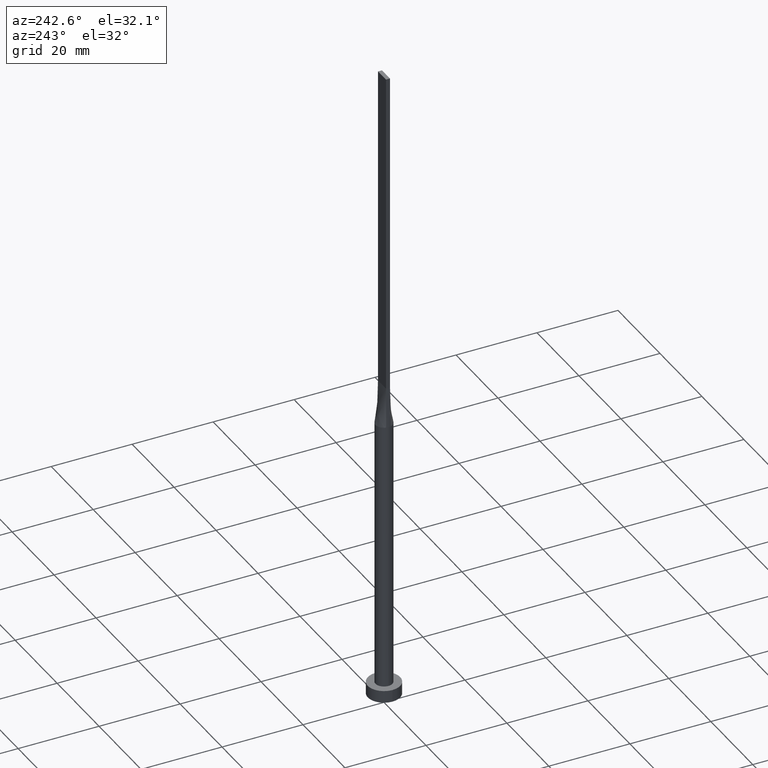
[diagram: clean part render]
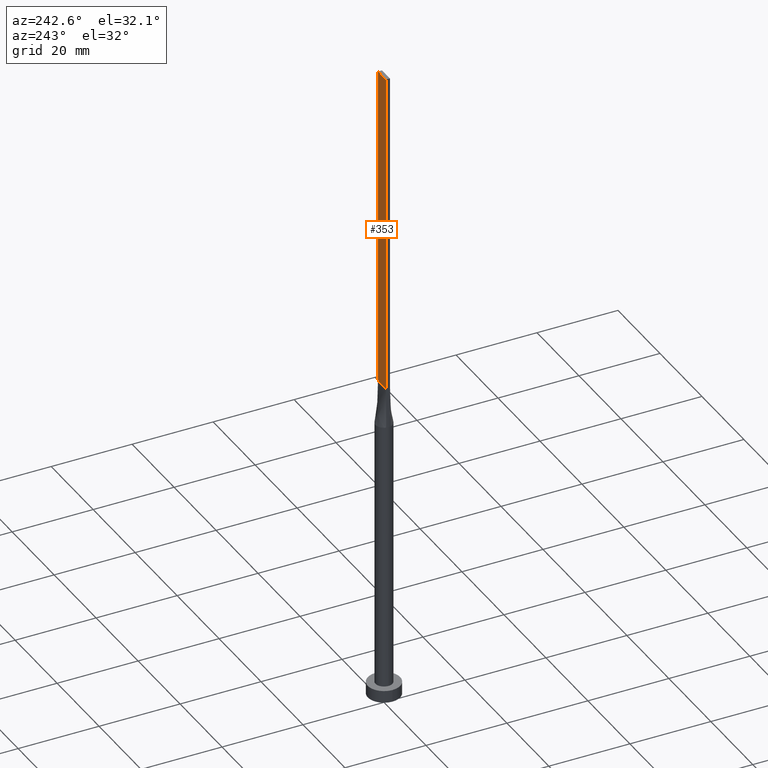
[diagram: same view with one face highlighted and labeled with its STEP entity id]
A machine part, auxiliary view. The second image highlights one B-rep face of the part: STEP entity #353.
In plain terms, the highlighted planar face has unit normal (0, -1, 0).
Its self-contained STEP definition (entity closure, byte-faithful):
#19 = DIRECTION ( 'NONE',  ( -0.000000000000000000, -0.000000000000000000, -1.000000000000000000 ) ) ;
#23 = ORIENTED_EDGE ( 'NONE', *, *, #364, .F. ) ;
#24 = LINE ( 'NONE', #469, #293 ) ;
#26 = DIRECTION ( 'NONE',  ( 0.000000000000000000, -0.000000000000000000, -1.000000000000000000 ) ) ;
#35 = DIRECTION ( 'NONE',  ( -1.000000000000000000, -0.000000000000000000, -0.000000000000000000 ) ) ;
#50 = VECTOR ( 'NONE', #444, 1000.000000000000000 ) ;
#62 = FACE_OUTER_BOUND ( 'NONE', #93, .T. ) ;
#93 = EDGE_LOOP ( 'NONE', ( #491, #23, #294, #322 ) ) ;
#100 = DIRECTION ( 'NONE',  ( -0.000000000000000000, -0.000000000000000000, -1.000000000000000000 ) ) ;
#111 = VERTEX_POINT ( 'NONE', #266 ) ;
#117 = VECTOR ( 'NONE', #35, 1000.000000000000000 ) ;
#120 = VERTEX_POINT ( 'NONE', #388 ) ;
#183 = LINE ( 'NONE', #278, #117 ) ;
#200 = AXIS2_PLACEMENT_3D ( 'NONE', #282, #560, #26 ) ;
#266 = CARTESIAN_POINT ( 'NONE',  ( -1.899999999999999689, 0.5000000000000002220, 80.00000000000000000 ) ) ;
#278 = CARTESIAN_POINT ( 'NONE',  ( -1.899999999999999689, 0.5000000000000002220, 80.00000000000000000 ) ) ;
#282 = CARTESIAN_POINT ( 'NONE',  ( 1.899999999999999689, 0.5000000000000002220, 160.0000000000000000 ) ) ;
#286 = LINE ( 'NONE', #554, #540 ) ;
#293 = VECTOR ( 'NONE', #100, 1000.000000000000000 ) ;
#294 = ORIENTED_EDGE ( 'NONE', *, *, #403, .F. ) ;
#309 = VERTEX_POINT ( 'NONE', #414 ) ;
#322 = ORIENTED_EDGE ( 'NONE', *, *, #549, .T. ) ;
#351 = VERTEX_POINT ( 'NONE', #418 ) ;
#353 = ADVANCED_FACE ( 'NONE', ( #62 ), #462, .F. ) ;
#354 = LINE ( 'NONE', #405, #50 ) ;
#364 = EDGE_CURVE ( 'NONE', #309, #111, #286, .T. ) ;
#367 = EDGE_CURVE ( 'NONE', #120, #111, #183, .T. ) ;
#388 = CARTESIAN_POINT ( 'NONE',  ( 1.899999999999999689, 0.5000000000000002220, 80.00000000000000000 ) ) ;
#403 = EDGE_CURVE ( 'NONE', #351, #309, #354, .T. ) ;
#405 = CARTESIAN_POINT ( 'NONE',  ( 1.899999999999999689, 0.5000000000000002220, 160.0000000000000000 ) ) ;
#414 = CARTESIAN_POINT ( 'NONE',  ( -1.899999999999999689, 0.5000000000000002220, 160.0000000000000000 ) ) ;
#418 = CARTESIAN_POINT ( 'NONE',  ( 1.899999999999999689, 0.5000000000000002220, 160.0000000000000000 ) ) ;
#444 = DIRECTION ( 'NONE',  ( -1.000000000000000000, 0.000000000000000000, 0.000000000000000000 ) ) ;
#462 = PLANE ( 'NONE',  #200 ) ;
#469 = CARTESIAN_POINT ( 'NONE',  ( 1.899999999999999689, 0.5000000000000002220, 160.0000000000000000 ) ) ;
#491 = ORIENTED_EDGE ( 'NONE', *, *, #367, .T. ) ;
#540 = VECTOR ( 'NONE', #19, 1000.000000000000000 ) ;
#549 = EDGE_CURVE ( 'NONE', #351, #120, #24, .T. ) ;
#554 = CARTESIAN_POINT ( 'NONE',  ( -1.899999999999999689, 0.5000000000000002220, 160.0000000000000000 ) ) ;
#560 = DIRECTION ( 'NONE',  ( 0.000000000000000000, -1.000000000000000000, 0.000000000000000000 ) ) ;